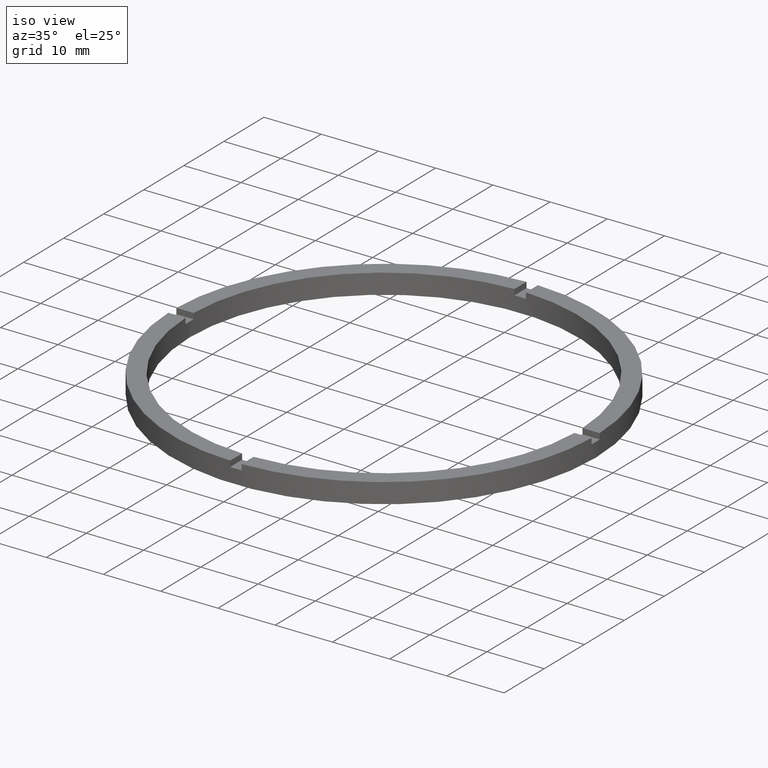
[diagram: clean part render]
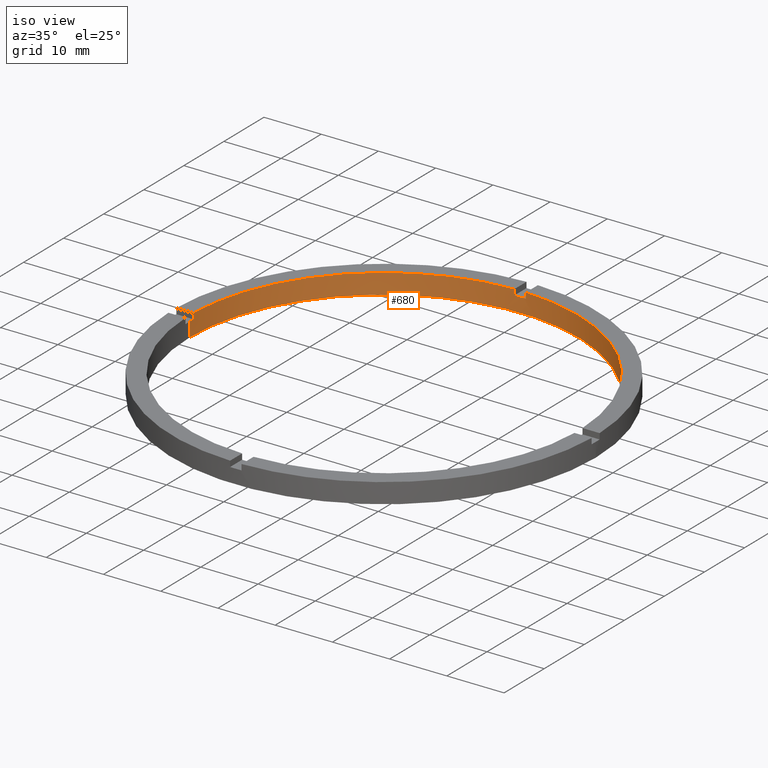
[diagram: same view with one face highlighted and labeled with its STEP entity id]
A machine part, iso view. The second image highlights one B-rep face of the part: STEP entity #680.
In plain terms, the highlighted cylindrical surface (partial cylindrical patch) has radius 34 mm, axis along (-0, -0, -1).
Its self-contained STEP definition (entity closure, byte-faithful):
#2 = DIRECTION ( 'NONE',  ( -0.000000000000000000, -0.000000000000000000, -1.000000000000000000 ) ) ;
#4 = EDGE_CURVE ( 'NONE', #280, #445, #151, .T. ) ;
#5 = DIRECTION ( 'NONE',  ( 1.000000000000000000, 0.000000000000000000, 0.000000000000000000 ) ) ;
#14 = CARTESIAN_POINT ( 'NONE',  ( 0.000000000000000000, 0.000000000000000000, 2.500000000000000000 ) ) ;
#23 = EDGE_CURVE ( 'NONE', #697, #442, #661, .T. ) ;
#39 = VECTOR ( 'NONE', #47, 1000.000000000000000 ) ;
#41 = DIRECTION ( 'NONE',  ( 0.000000000000000000, 0.000000000000000000, 1.000000000000000000 ) ) ;
#47 = DIRECTION ( 'NONE',  ( -0.000000000000000000, -0.000000000000000000, -1.000000000000000000 ) ) ;
#50 = CIRCLE ( 'NONE', #455, 34.00000000000000000 ) ;
#52 = VECTOR ( 'NONE', #2, 1000.000000000000000 ) ;
#53 = CARTESIAN_POINT ( 'NONE',  ( -1.000000000000025091, 33.98529093593285211, 2.500000000000000000 ) ) ;
#56 = LINE ( 'NONE', #700, #39 ) ;
#66 = DIRECTION ( 'NONE',  ( 1.000000000000000000, 0.000000000000000000, 0.000000000000000000 ) ) ;
#71 = LINE ( 'NONE', #96, #334 ) ;
#83 = EDGE_CURVE ( 'NONE', #140, #442, #427, .T. ) ;
#88 = CYLINDRICAL_SURFACE ( 'NONE', #106, 34.00000000000000000 ) ;
#90 = CARTESIAN_POINT ( 'NONE',  ( 0.000000000000000000, 0.000000000000000000, 0.000000000000000000 ) ) ;
#94 = EDGE_CURVE ( 'NONE', #657, #417, #161, .T. ) ;
#96 = CARTESIAN_POINT ( 'NONE',  ( -1.000000000000025091, 33.98529093593285211, 3.500000000000000000 ) ) ;
#102 = CARTESIAN_POINT ( 'NONE',  ( -34.00000000000000000, 0.000000000000000000, 0.000000000000000000 ) ) ;
#105 = CARTESIAN_POINT ( 'NONE',  ( -33.98529093593285921, 0.9999999999999731326, 2.500000000000000000 ) ) ;
#106 = AXIS2_PLACEMENT_3D ( 'NONE', #482, #221, #628 ) ;
#112 = CARTESIAN_POINT ( 'NONE',  ( -33.98529093593285921, 0.9999999999999731326, 3.500000000000000000 ) ) ;
#128 = CARTESIAN_POINT ( 'NONE',  ( 0.000000000000000000, 0.000000000000000000, 3.500000000000000000 ) ) ;
#140 = VERTEX_POINT ( 'NONE', #105 ) ;
#141 = DIRECTION ( 'NONE',  ( 0.000000000000000000, 0.000000000000000000, 1.000000000000000000 ) ) ;
#148 = DIRECTION ( 'NONE',  ( 1.000000000000000000, 0.000000000000000000, 0.000000000000000000 ) ) ;
#149 = ORIENTED_EDGE ( 'NONE', *, *, #23, .T. ) ;
#151 = CIRCLE ( 'NONE', #705, 34.00000000000000000 ) ;
#156 = AXIS2_PLACEMENT_3D ( 'NONE', #128, #730, #637 ) ;
#158 = VECTOR ( 'NONE', #667, 1000.000000000000000 ) ;
#161 = CIRCLE ( 'NONE', #156, 34.00000000000000000 ) ;
#192 = ORIENTED_EDGE ( 'NONE', *, *, #506, .F. ) ;
#194 = AXIS2_PLACEMENT_3D ( 'NONE', #424, #529, #250 ) ;
#198 = ORIENTED_EDGE ( 'NONE', *, *, #247, .T. ) ;
#221 = DIRECTION ( 'NONE',  ( -0.000000000000000000, -0.000000000000000000, -1.000000000000000000 ) ) ;
#222 = ORIENTED_EDGE ( 'NONE', *, *, #619, .F. ) ;
#224 = CARTESIAN_POINT ( 'NONE',  ( 33.98529093593285921, 0.9999999999998421263, 3.500000000000000000 ) ) ;
#226 = CARTESIAN_POINT ( 'NONE',  ( -34.00000000000000000, 0.000000000000000000, 2.500000000000000000 ) ) ;
#236 = ORIENTED_EDGE ( 'NONE', *, *, #4, .F. ) ;
#237 = ORIENTED_EDGE ( 'NONE', *, *, #292, .T. ) ;
#247 = EDGE_CURVE ( 'NONE', #779, #746, #625, .T. ) ;
#250 = DIRECTION ( 'NONE',  ( 1.000000000000000000, 0.000000000000000000, 0.000000000000000000 ) ) ;
#254 = ORIENTED_EDGE ( 'NONE', *, *, #491, .T. ) ;
#263 = EDGE_CURVE ( 'NONE', #140, #456, #632, .T. ) ;
#280 = VERTEX_POINT ( 'NONE', #727 ) ;
#286 = DIRECTION ( 'NONE',  ( 0.000000000000000000, -0.000000000000000000, 1.000000000000000000 ) ) ;
#292 = EDGE_CURVE ( 'NONE', #456, #445, #56, .T. ) ;
#309 = LINE ( 'NONE', #532, #52 ) ;
#325 = AXIS2_PLACEMENT_3D ( 'NONE', #14, #615, #778 ) ;
#327 = FACE_OUTER_BOUND ( 'NONE', #758, .T. ) ;
#334 = VECTOR ( 'NONE', #567, 1000.000000000000000 ) ;
#335 = VECTOR ( 'NONE', #348, 1000.000000000000000 ) ;
#348 = DIRECTION ( 'NONE',  ( -0.000000000000000000, -0.000000000000000000, -1.000000000000000000 ) ) ;
#417 = VERTEX_POINT ( 'NONE', #614 ) ;
#420 = CARTESIAN_POINT ( 'NONE',  ( 0.9999999999999749090, 33.98529093593285921, 2.500000000000000000 ) ) ;
#424 = CARTESIAN_POINT ( 'NONE',  ( 0.000000000000000000, 0.000000000000000000, 2.500000000000000000 ) ) ;
#427 = LINE ( 'NONE', #112, #158 ) ;
#430 = CARTESIAN_POINT ( 'NONE',  ( -33.98529093593285921, 0.9999999999999731326, 3.500000000000000000 ) ) ;
#442 = VERTEX_POINT ( 'NONE', #430 ) ;
#445 = VERTEX_POINT ( 'NONE', #102 ) ;
#446 = CARTESIAN_POINT ( 'NONE',  ( 0.9999999999999749090, 33.98529093593285921, 3.500000000000000000 ) ) ;
#455 = AXIS2_PLACEMENT_3D ( 'NONE', #718, #286, #5 ) ;
#456 = VERTEX_POINT ( 'NONE', #226 ) ;
#462 = ORIENTED_EDGE ( 'NONE', *, *, #83, .F. ) ;
#472 = ORIENTED_EDGE ( 'NONE', *, *, #263, .T. ) ;
#482 = CARTESIAN_POINT ( 'NONE',  ( 0.000000000000000000, 0.000000000000000000, 3.500000000000000000 ) ) ;
#491 = EDGE_CURVE ( 'NONE', #538, #658, #50, .T. ) ;
#506 = EDGE_CURVE ( 'NONE', #779, #280, #309, .T. ) ;
#521 = DIRECTION ( 'NONE',  ( 0.000000000000000000, 0.000000000000000000, 1.000000000000000000 ) ) ;
#529 = DIRECTION ( 'NONE',  ( 0.000000000000000000, 0.000000000000000000, 1.000000000000000000 ) ) ;
#531 = CARTESIAN_POINT ( 'NONE',  ( 34.00000000000000000, 4.163799117101000559E-15, 2.500000000000000000 ) ) ;
#532 = CARTESIAN_POINT ( 'NONE',  ( 34.00000000000000000, 4.163799117101000559E-15, 3.500000000000000000 ) ) ;
#538 = VERTEX_POINT ( 'NONE', #420 ) ;
#567 = DIRECTION ( 'NONE',  ( -0.000000000000000000, -0.000000000000000000, -1.000000000000000000 ) ) ;
#585 = LINE ( 'NONE', #446, #591 ) ;
#589 = LINE ( 'NONE', #224, #335 ) ;
#591 = VECTOR ( 'NONE', #41, 1000.000000000000000 ) ;
#606 = EDGE_CURVE ( 'NONE', #657, #746, #589, .T. ) ;
#614 = CARTESIAN_POINT ( 'NONE',  ( 0.9999999999999749090, 33.98529093593285921, 3.500000000000000000 ) ) ;
#615 = DIRECTION ( 'NONE',  ( 0.000000000000000000, 0.000000000000000000, 1.000000000000000000 ) ) ;
#619 = EDGE_CURVE ( 'NONE', #538, #417, #585, .T. ) ;
#625 = CIRCLE ( 'NONE', #194, 34.00000000000000000 ) ;
#628 = DIRECTION ( 'NONE',  ( -1.000000000000000000, 0.000000000000000000, 0.000000000000000000 ) ) ;
#632 = CIRCLE ( 'NONE', #325, 34.00000000000000000 ) ;
#637 = DIRECTION ( 'NONE',  ( 1.000000000000000000, 0.000000000000000000, 0.000000000000000000 ) ) ;
#646 = AXIS2_PLACEMENT_3D ( 'NONE', #654, #521, #66 ) ;
#654 = CARTESIAN_POINT ( 'NONE',  ( 0.000000000000000000, 0.000000000000000000, 3.500000000000000000 ) ) ;
#657 = VERTEX_POINT ( 'NONE', #776 ) ;
#658 = VERTEX_POINT ( 'NONE', #53 ) ;
#661 = CIRCLE ( 'NONE', #646, 34.00000000000000000 ) ;
#667 = DIRECTION ( 'NONE',  ( 0.000000000000000000, 0.000000000000000000, 1.000000000000000000 ) ) ;
#680 = ADVANCED_FACE ( 'NONE', ( #327 ), #88, .F. ) ;
#685 = CARTESIAN_POINT ( 'NONE',  ( 33.98529093593285921, 0.9999999999998421263, 2.500000000000000000 ) ) ;
#686 = CARTESIAN_POINT ( 'NONE',  ( -1.000000000000025091, 33.98529093593285211, 3.500000000000000000 ) ) ;
#697 = VERTEX_POINT ( 'NONE', #686 ) ;
#700 = CARTESIAN_POINT ( 'NONE',  ( -34.00000000000000000, 0.000000000000000000, 3.500000000000000000 ) ) ;
#705 = AXIS2_PLACEMENT_3D ( 'NONE', #90, #141, #148 ) ;
#710 = EDGE_CURVE ( 'NONE', #697, #658, #71, .T. ) ;
#718 = CARTESIAN_POINT ( 'NONE',  ( 0.000000000000000000, 0.000000000000000000, 2.500000000000000000 ) ) ;
#721 = ORIENTED_EDGE ( 'NONE', *, *, #710, .F. ) ;
#723 = ORIENTED_EDGE ( 'NONE', *, *, #606, .F. ) ;
#727 = CARTESIAN_POINT ( 'NONE',  ( 34.00000000000000000, 4.163799117101000559E-15, 0.000000000000000000 ) ) ;
#730 = DIRECTION ( 'NONE',  ( 0.000000000000000000, 0.000000000000000000, 1.000000000000000000 ) ) ;
#742 = ORIENTED_EDGE ( 'NONE', *, *, #94, .T. ) ;
#746 = VERTEX_POINT ( 'NONE', #685 ) ;
#758 = EDGE_LOOP ( 'NONE', ( #192, #198, #723, #742, #222, #254, #721, #149, #462, #472, #237, #236 ) ) ;
#776 = CARTESIAN_POINT ( 'NONE',  ( 33.98529093593285921, 0.9999999999998421263, 3.500000000000000000 ) ) ;
#778 = DIRECTION ( 'NONE',  ( 1.000000000000000000, 0.000000000000000000, 0.000000000000000000 ) ) ;
#779 = VERTEX_POINT ( 'NONE', #531 ) ;